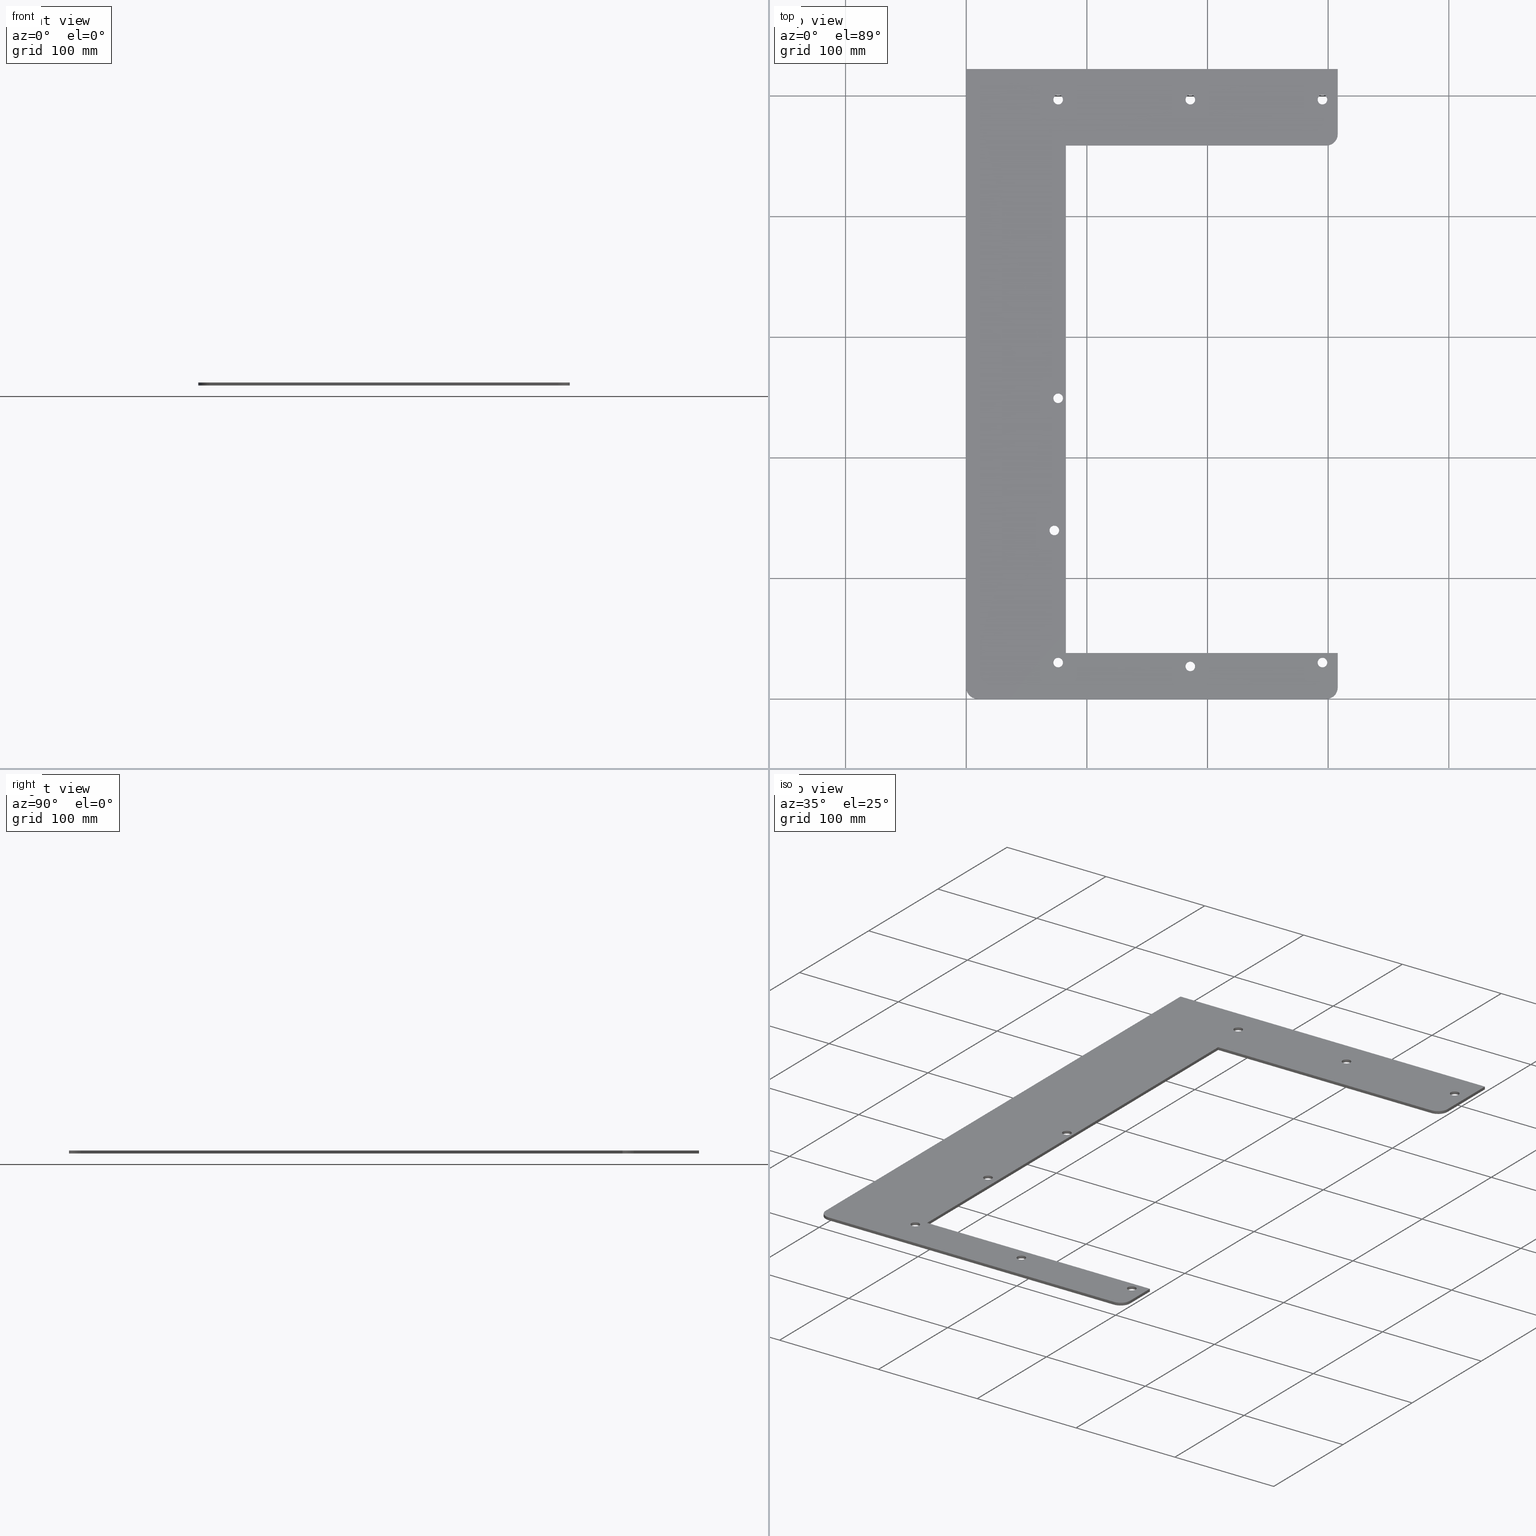
[diagram: canonical four-view strip — front | top / right | iso, engineering-drawing reading convention]
A machine part, canonical four-view strip (front | top / right | iso — engineering-drawing reading convention). The complete STEP part file that produces these views, byte-faithful:
ISO-10303-21;
HEADER;
FILE_DESCRIPTION (( 'STEP AP203' ),
    '1' );
FILE_NAME ('1485EL1.step',
    '2020-11-19T14:41:30',
    ( 'ADC123' ),
    ( 'Microsoft' ),
    'SwSTEP 2.0',
    'SolidWorks 2019',
    '' );
FILE_SCHEMA (( 'CONFIG_CONTROL_DESIGN' ));
ENDSEC;

DATA;
#1 = CARTESIAN_POINT ( 'NONE',  ( 3.250000000000003997, 0.0000000000000000000, 0.1000000000000000056 ) ) ;
#2 = VERTEX_POINT ( 'NONE', #110 ) ;
#3 = CALENDAR_DATE ( 2020, 19, 11 ) ;
#4 = CARTESIAN_POINT ( 'NONE',  ( 12.12500000000000178, 20.56000000000000227, 0.1000000000000000056 ) ) ;
#5 = ORIENTED_EDGE ( 'NONE', *, *, #120, .T. ) ;
#6 = CIRCLE ( 'NONE', #446, 0.1562500000000008327 ) ;
#7 = DIRECTION ( 'NONE',  ( 1.319733330272589941E-16, -1.000000000000000000, 0.0000000000000000000 ) ) ;
#8 = APPROVAL_STATUS ( 'not_yet_approved' ) ;
#9 = DIRECTION ( 'NONE',  ( -0.0000000000000000000, -0.0000000000000000000, -1.000000000000000000 ) ) ;
#10 = ORIENTED_EDGE ( 'NONE', *, *, #142, .F. ) ;
#11 = LINE ( 'NONE', #16, #102 ) ;
#12 = APPROVAL_DATE_TIME ( #71, #708 ) ;
#13 = CYLINDRICAL_SURFACE ( 'NONE', #484, 0.1562500000000008327 ) ;
#14 = ORIENTED_EDGE ( 'NONE', *, *, #614, .T. ) ;
#15 = EDGE_CURVE ( 'NONE', #389, #518, #517, .T. ) ;
#16 = CARTESIAN_POINT ( 'NONE',  ( 12.12500000000000178, 0.0000000000000000000, 0.0000000000000000000 ) ) ;
#17 = DIRECTION ( 'NONE',  ( -0.0000000000000000000, -0.0000000000000000000, 1.000000000000000000 ) ) ;
#18 = ORIENTED_EDGE ( 'NONE', *, *, #625, .F. ) ;
#19 = DIRECTION ( 'NONE',  ( -0.0000000000000000000, -0.0000000000000000000, -1.000000000000000000 ) ) ;
#20 = EDGE_CURVE ( 'NONE', #399, #226, #296, .T. ) ;
#21 = CARTESIAN_POINT ( 'NONE',  ( 7.287686882301918868E-16, 0.3750000000000001110, 0.0000000000000000000 ) ) ;
#22 = CARTESIAN_POINT ( 'NONE',  ( 12.12500000000000178, 20.56000000000000227, 0.0000000000000000000 ) ) ;
#23 = ORIENTED_EDGE ( 'NONE', *, *, #605, .F. ) ;
#24 = CC_DESIGN_PERSON_AND_ORGANIZATION_ASSIGNMENT ( #91, #28, ( #27 ) ) ;
#25 = CARTESIAN_POINT ( 'NONE',  ( 11.75000000000000000, 0.0000000000000000000, 0.0000000000000000000 ) ) ;
#26 = ORIENTED_EDGE ( 'NONE', *, *, #666, .T. ) ;
#27 = SECURITY_CLASSIFICATION ( '', '', #321 ) ;
#28 = PERSON_AND_ORGANIZATION_ROLE ( 'classification_officer' ) ;
#29 = VERTEX_POINT ( 'NONE', #209 ) ;
#30 = EDGE_LOOP ( 'NONE', ( #603 ) ) ;
#31 = CIRCLE ( 'NONE', #671, 0.1562499999999997224 ) ;
#32 = DIRECTION ( 'NONE',  ( 1.000000000000000000, 0.0000000000000000000, 0.0000000000000000000 ) ) ;
#33 = EDGE_CURVE ( 'NONE', #431, #431, #523, .T. ) ;
#34 = VERTEX_POINT ( 'NONE', #724 ) ;
#35 = CARTESIAN_POINT ( 'NONE',  ( 11.75000000000000000, 18.06000000000000227, 0.1000000000000000056 ) ) ;
#36 = CARTESIAN_POINT ( 'NONE',  ( 3.156250000000003997, 19.56000000000000227, 0.0000000000000000000 ) ) ;
#37 = EDGE_CURVE ( 'NONE', #399, #2, #620, .T. ) ;
#38 = DIRECTION ( 'NONE',  ( 0.0000000000000000000, 0.0000000000000000000, 1.000000000000000000 ) ) ;
#39 = VECTOR ( 'NONE', #423, 39.37007874015748143 ) ;
#40 = DIRECTION ( 'NONE',  ( 0.0000000000000000000, -0.0000000000000000000, 1.000000000000000000 ) ) ;
#41 = EDGE_LOOP ( 'NONE', ( #653, #238, #745, #130 ) ) ;
#42 = EDGE_CURVE ( 'NONE', #518, #429, #231, .T. ) ;
#43 = FACE_BOUND ( 'NONE', #572, .T. ) ;
#44 = ORIENTED_EDGE ( 'NONE', *, *, #680, .T. ) ;
#45 = CIRCLE ( 'NONE', #500, 0.1562499999999997224 ) ;
#46 = FACE_BOUND ( 'NONE', #507, .T. ) ;
#47 = DIRECTION ( 'NONE',  ( -0.0000000000000000000, -0.0000000000000000000, -1.000000000000000000 ) ) ;
#48 = ORIENTED_EDGE ( 'NONE', *, *, #223, .F. ) ;
#49 = APPLICATION_PROTOCOL_DEFINITION ( 'international standard', 'config_control_design', 1994, #676 ) ;
#50 = DIRECTION ( 'NONE',  ( -1.223410748777129902E-17, 1.000000000000000000, 0.0000000000000000000 ) ) ;
#51 = CIRCLE ( 'NONE', #341, 0.1562499999999997224 ) ;
#52 = FACE_OUTER_BOUND ( 'NONE', #286, .T. ) ;
#53 = EDGE_LOOP ( 'NONE', ( #354 ) ) ;
#54 = ADVANCED_FACE ( 'NONE', ( #456, #121 ), #690, .F. ) ;
#55 = PERSON_AND_ORGANIZATION_ROLE ( 'design_owner' ) ;
#56 = PLANE ( 'NONE',  #678 ) ;
#57 = EDGE_LOOP ( 'NONE', ( #308 ) ) ;
#58 = VERTEX_POINT ( 'NONE', #453 ) ;
#59 = ADVANCED_FACE ( 'NONE', ( #52, #637 ), #448, .F. ) ;
#60 = APPROVAL_ROLE ( '' ) ;
#61 = CARTESIAN_POINT ( 'NONE',  ( 1.381182328356955297E-16, 20.56000000000000227, 0.1000000000000000056 ) ) ;
#62 = CIRCLE ( 'NONE', #319, 0.1562500000000002776 ) ;
#63 = DIRECTION ( 'NONE',  ( 0.0000000000000000000, 0.0000000000000000000, 1.000000000000000000 ) ) ;
#64 = VERTEX_POINT ( 'NONE', #580 ) ;
#65 = LINE ( 'NONE', #649, #537 ) ;
#66 = DATE_TIME_ROLE ( 'creation_date' ) ;
#67 = VECTOR ( 'NONE', #85, 39.37007874015748143 ) ;
#68 = DIRECTION ( 'NONE',  ( 0.0000000000000000000, 0.0000000000000000000, 1.000000000000000000 ) ) ;
#69 = ORIENTED_EDGE ( 'NONE', *, *, #72, .F. ) ;
#70 = CARTESIAN_POINT ( 'NONE',  ( 2.762364656713910594E-16, 20.56000000000000227, 0.0000000000000000000 ) ) ;
#71 = DATE_AND_TIME ( #406, #108 ) ;
#72 = EDGE_CURVE ( 'NONE', #374, #374, #694, .T. ) ;
#73 = CARTESIAN_POINT ( 'NONE',  ( 12.12500000000000178, 18.06000000000000227, 0.0000000000000000000 ) ) ;
#74 = ORIENTED_EDGE ( 'NONE', *, *, #346, .T. ) ;
#75 = LINE ( 'NONE', #198, #368 ) ;
#76 = CARTESIAN_POINT ( 'NONE',  ( 11.75000000000000000, 0.0000000000000000000, 0.1000000000000000056 ) ) ;
#77 = ORIENTED_EDGE ( 'NONE', *, *, #725, .F. ) ;
#78 = CARTESIAN_POINT ( 'NONE',  ( 3.000000000000007994, 9.812500000000001776, 0.09999999999999947820 ) ) ;
#79 = ORIENTED_EDGE ( 'NONE', *, *, #170, .T. ) ;
#80 = CALENDAR_DATE ( 2020, 19, 11 ) ;
#81 = CYLINDRICAL_SURFACE ( 'NONE', #193, 0.1562500000000002776 ) ;
#82 = CARTESIAN_POINT ( 'NONE',  ( 0.3750000000000007772, 0.0000000000000000000, 0.0000000000000000000 ) ) ;
#83 = ADVANCED_FACE ( 'NONE', ( #291 ), #167, .F. ) ;
#84 = CIRCLE ( 'NONE', #295, 0.1562500000000008327 ) ;
#85 = DIRECTION ( 'NONE',  ( -1.000000000000000000, -0.0000000000000000000, 0.0000000000000000000 ) ) ;
#86 = DIRECTION ( 'NONE',  ( 1.000000000000000000, 0.0000000000000000000, 0.0000000000000000000 ) ) ;
#87 = DIRECTION ( 'NONE',  ( 1.000000000000000000, 0.0000000000000000000, 0.0000000000000000000 ) ) ;
#88 = APPROVAL_PERSON_ORGANIZATION ( #433, #234, #552 ) ;
#89 = ADVANCED_FACE ( 'NONE', ( #463 ), #571, .F. ) ;
#90 = LINE ( 'NONE', #560, #93 ) ;
#91 = PERSON_AND_ORGANIZATION ( #151, #411 ) ;
#92 = CARTESIAN_POINT ( 'NONE',  ( 3.156250000000007994, 1.187500000000000000, 0.0000000000000000000 ) ) ;
#93 = VECTOR ( 'NONE', #40, 39.37007874015748143 ) ;
#94 = CC_DESIGN_PERSON_AND_ORGANIZATION_ASSIGNMENT ( #588, #55, ( #476 ) ) ;
#95 = CARTESIAN_POINT ( 'NONE',  ( 12.12500000000000178, 18.43500000000000227, 0.1000000000000000056 ) ) ;
#96 = CARTESIAN_POINT ( 'NONE',  ( 3.031250000000004441, 5.500000000000000000, 0.09999999999999947820 ) ) ;
#97 = LINE ( 'NONE', #498, #505 ) ;
#98 = ADVANCED_FACE ( 'NONE', ( #538, #652 ), #81, .F. ) ;
#99 = CYLINDRICAL_SURFACE ( 'NONE', #561, 0.3750000000000002220 ) ;
#100 = ORIENTED_EDGE ( 'NONE', *, *, #424, .F. ) ;
#101 = AXIS2_PLACEMENT_3D ( 'NONE', #422, #17, #600 ) ;
#102 = VECTOR ( 'NONE', #370, 39.37007874015748143 ) ;
#103 = CARTESIAN_POINT ( 'NONE',  ( 11.75000000000000000, 18.06000000000000227, 0.1000000000000000056 ) ) ;
#104 = ORIENTED_EDGE ( 'NONE', *, *, #735, .T. ) ;
#105 = DIRECTION ( 'NONE',  ( 0.0000000000000000000, 0.0000000000000000000, 1.000000000000000000 ) ) ;
#106 = DIRECTION ( 'NONE',  ( -1.223410748777129902E-17, 1.000000000000000000, 0.0000000000000000000 ) ) ;
#107 = ORIENTED_EDGE ( 'NONE', *, *, #680, .F. ) ;
#108 = LOCAL_TIME ( 9, 41, 30.00000000000000000, #693 ) ;
#109 = CARTESIAN_POINT ( 'NONE',  ( 0.0000000000000000000, 0.0000000000000000000, 0.1000000000000000056 ) ) ;
#110 = CARTESIAN_POINT ( 'NONE',  ( 0.3750000000000007772, 0.0000000000000000000, 0.1000000000000000056 ) ) ;
#111 = EDGE_LOOP ( 'NONE', ( #420, #336, #119, #163 ) ) ;
#112 = FACE_OUTER_BOUND ( 'NONE', #512, .T. ) ;
#113 = AXIS2_PLACEMENT_3D ( 'NONE', #189, #714, #697 ) ;
#114 = VERTEX_POINT ( 'NONE', #592 ) ;
#115 = ORIENTED_EDGE ( 'NONE', *, *, #666, .F. ) ;
#116 = PERSON_AND_ORGANIZATION_ROLE ( 'creator' ) ;
#117 = DIRECTION ( 'NONE',  ( 0.0000000000000000000, 0.0000000000000000000, 1.000000000000000000 ) ) ;
#118 = CARTESIAN_POINT ( 'NONE',  ( 3.000000000000003997, 19.56000000000000227, -23.76921081644720246 ) ) ;
#119 = ORIENTED_EDGE ( 'NONE', *, *, #387, .F. ) ;
#120 = EDGE_CURVE ( 'NONE', #326, #326, #421, .T. ) ;
#121 = FACE_OUTER_BOUND ( 'NONE', #508, .T. ) ;
#122 = EDGE_LOOP ( 'NONE', ( #201 ) ) ;
#123 = CARTESIAN_POINT ( 'NONE',  ( 3.250000000000003997, 1.500000000000000222, 0.1000000000000000056 ) ) ;
#124 = DIRECTION ( 'NONE',  ( 1.000000000000000000, 0.0000000000000000000, 0.0000000000000000000 ) ) ;
#125 = AXIS2_PLACEMENT_3D ( 'NONE', #610, #727, #213 ) ;
#126 = DIRECTION ( 'NONE',  ( -1.000000000000000000, -0.0000000000000000000, 0.0000000000000000000 ) ) ;
#127 = ORIENTED_EDGE ( 'NONE', *, *, #614, .F. ) ;
#128 = CARTESIAN_POINT ( 'NONE',  ( 12.12500000000000178, 0.3750000000000000555, 0.1000000000000000056 ) ) ;
#129 = DIRECTION ( 'NONE',  ( 1.000000000000000000, 0.0000000000000000000, 0.0000000000000000000 ) ) ;
#130 = ORIENTED_EDGE ( 'NONE', *, *, #20, .T. ) ;
#131 = DIRECTION ( 'NONE',  ( 0.0000000000000000000, -1.000000000000000000, 0.0000000000000000000 ) ) ;
#132 = PERSON_AND_ORGANIZATION_ROLE ( 'creator' ) ;
#133 = CARTESIAN_POINT ( 'NONE',  ( 11.62500000000000000, 1.187500000000000000, -23.76921081644720246 ) ) ;
#134 = DIRECTION ( 'NONE',  ( -0.0000000000000000000, -0.0000000000000000000, -1.000000000000000000 ) ) ;
#135 = DIRECTION ( 'NONE',  ( 1.000000000000000000, 0.0000000000000000000, 0.0000000000000000000 ) ) ;
#136 = ADVANCED_FACE ( 'NONE', ( #362, #713 ), #197, .F. ) ;
#137 = DIRECTION ( 'NONE',  ( -1.000000000000000000, 0.0000000000000000000, 0.0000000000000000000 ) ) ;
#138 = CIRCLE ( 'NONE', #235, 0.1562500000000008327 ) ;
#139 = DIRECTION ( 'NONE',  ( -0.0000000000000000000, 1.000000000000000000, 0.0000000000000000000 ) ) ;
#140 = EDGE_LOOP ( 'NONE', ( #127, #628, #472, #48 ) ) ;
#141 = MANIFOLD_SOLID_BREP ( 'COM49447-1-solid1', #635 ) ;
#142 = EDGE_CURVE ( 'NONE', #335, #624, #417, .T. ) ;
#143 = CARTESIAN_POINT ( 'NONE',  ( 3.756290991288361679E-16, 0.3750000000000000555, 0.1000000000000000056 ) ) ;
#144 = VERTEX_POINT ( 'NONE', #36 ) ;
#145 = LOCAL_TIME ( 9, 41, 30.00000000000000000, #596 ) ;
#146 = DIRECTION ( 'NONE',  ( -1.000000000000000000, 0.0000000000000000000, 0.0000000000000000000 ) ) ;
#147 = DATE_TIME_ROLE ( 'classification_date' ) ;
#148 = DIRECTION ( 'NONE',  ( -1.000000000000000000, 0.0000000000000000000, 0.0000000000000000000 ) ) ;
#149 = AXIS2_PLACEMENT_3D ( 'NONE', #123, #131, #414 ) ;
#150 = VECTOR ( 'NONE', #466, 39.37007874015748143 ) ;
#151 = PERSON ( 'UNSPECIFIED', 'UNSPECIFIED', 'UNSPECIFIED', ('UNSPECIFIED'), ('UNSPECIFIED'), ('UNSPECIFIED') ) ;
#152 = DESIGN_CONTEXT ( 'detailed design', #252, 'design' ) ;
#153 = DIRECTION ( 'NONE',  ( -1.000000000000000000, -0.0000000000000000000, 0.0000000000000000000 ) ) ;
#154 = FACE_OUTER_BOUND ( 'NONE', #533, .T. ) ;
#155 = CC_DESIGN_PERSON_AND_ORGANIZATION_ASSIGNMENT ( #243, #132, ( #749 ) ) ;
#156 = AXIS2_PLACEMENT_3D ( 'NONE', #569, #521, #124 ) ;
#157 = LINE ( 'NONE', #263, #186 ) ;
#158 = ORIENTED_EDGE ( 'NONE', *, *, #545, .T. ) ;
#159 = AXIS2_PLACEMENT_3D ( 'NONE', #366, #709, #311 ) ;
#160 = VECTOR ( 'NONE', #47, 39.37007874015748143 ) ;
#161 = DIRECTION ( 'NONE',  ( 0.0000000000000000000, -1.000000000000000000, -0.0000000000000000000 ) ) ;
#162 = CARTESIAN_POINT ( 'NONE',  ( 7.312500000000000888, 19.56000000000000227, 0.0000000000000000000 ) ) ;
#163 = ORIENTED_EDGE ( 'NONE', *, *, #424, .T. ) ;
#164 =( NAMED_UNIT ( * ) SI_UNIT ( $, .STERADIAN. ) SOLID_ANGLE_UNIT ( ) );
#165 = EDGE_CURVE ( 'NONE', #546, #546, #84, .T. ) ;
#166 = DIRECTION ( 'NONE',  ( 1.000000000000000000, 0.0000000000000000000, 0.0000000000000000000 ) ) ;
#167 = PLANE ( 'NONE',  #654 ) ;
#168 = ORIENTED_EDGE ( 'NONE', *, *, #465, .F. ) ;
#169 = APPROVAL_DATE_TIME ( #684, #287 ) ;
#170 = EDGE_CURVE ( 'NONE', #445, #429, #194, .T. ) ;
#171 = FACE_OUTER_BOUND ( 'NONE', #353, .T. ) ;
#172 = DIRECTION ( 'NONE',  ( 0.0000000000000000000, 0.0000000000000000000, 1.000000000000000000 ) ) ;
#173 = ORIENTED_EDGE ( 'NONE', *, *, #247, .F. ) ;
#174 = CYLINDRICAL_SURFACE ( 'NONE', #357, 0.1562499999999997224 ) ;
#175 = CIRCLE ( 'NONE', #707, 0.3750000000000000555 ) ;
#176 = DIRECTION ( 'NONE',  ( 0.0000000000000000000, 0.0000000000000000000, -1.000000000000000000 ) ) ;
#177 = ORIENTED_EDGE ( 'NONE', *, *, #37, .T. ) ;
#178 = ORIENTED_EDGE ( 'NONE', *, *, #387, .T. ) ;
#179 = VERTEX_POINT ( 'NONE', #76 ) ;
#180 = DIRECTION ( 'NONE',  ( 1.000000000000000000, 0.0000000000000000000, 0.0000000000000000000 ) ) ;
#181 = VERTEX_POINT ( 'NONE', #228 ) ;
#182 = CC_DESIGN_SECURITY_CLASSIFICATION ( #27, ( #749 ) ) ;
#183 = DIRECTION ( 'NONE',  ( 0.0000000000000000000, 0.0000000000000000000, 1.000000000000000000 ) ) ;
#184 = ORIENTED_EDGE ( 'NONE', *, *, #20, .F. ) ;
#185 = DIRECTION ( 'NONE',  ( 1.000000000000000000, 0.0000000000000000000, 0.0000000000000000000 ) ) ;
#186 = VECTOR ( 'NONE', #153, 39.37007874015748143 ) ;
#187 = DIRECTION ( 'NONE',  ( -0.0000000000000000000, -1.000000000000000000, 0.0000000000000000000 ) ) ;
#188 = ORIENTED_EDGE ( 'NONE', *, *, #478, .F. ) ;
#189 = CARTESIAN_POINT ( 'NONE',  ( 11.62500000000000000, 1.187500000000000000, 0.0000000000000000000 ) ) ;
#190 = ORIENTED_EDGE ( 'NONE', *, *, #515, .F. ) ;
#191 = PERSON_AND_ORGANIZATION_ROLE ( 'design_supplier' ) ;
#192 = EDGE_CURVE ( 'NONE', #179, #665, #522, .T. ) ;
#193 = AXIS2_PLACEMENT_3D ( 'NONE', #589, #647, #135 ) ;
#194 = LINE ( 'NONE', #73, #719 ) ;
#195 = LINE ( 'NONE', #409, #559 ) ;
#196 = CIRCLE ( 'NONE', #288, 0.1562499999999997224 ) ;
#197 = CYLINDRICAL_SURFACE ( 'NONE', #330, 0.1562500000000008327 ) ;
#198 = CARTESIAN_POINT ( 'NONE',  ( 3.250000000000003997, 18.06000000000000227, 0.0000000000000000000 ) ) ;
#199 = VECTOR ( 'NONE', #539, 39.37007874015748143 ) ;
#200 = CARTESIAN_POINT ( 'NONE',  ( 11.75000000000000000, 18.43500000000000227, 0.1000000000000000056 ) ) ;
#201 = ORIENTED_EDGE ( 'NONE', *, *, #165, .T. ) ;
#202 = AXIS2_PLACEMENT_3D ( 'NONE', #407, #9, #339 ) ;
#203 = DIRECTION ( 'NONE',  ( -0.0000000000000000000, -0.0000000000000000000, -1.000000000000000000 ) ) ;
#204 = CC_DESIGN_DATE_AND_TIME_ASSIGNMENT ( #365, #147, ( #27 ) ) ;
#205 = PLANE ( 'NONE',  #729 ) ;
#206 = SHAPE_DEFINITION_REPRESENTATION ( #643, #616 ) ;
#207 = VERTEX_POINT ( 'NONE', #434 ) ;
#208 = DIRECTION ( 'NONE',  ( 0.0000000000000000000, 0.0000000000000000000, -1.000000000000000000 ) ) ;
#209 = CARTESIAN_POINT ( 'NONE',  ( 7.468750000000000888, 1.062500000000000000, 0.0000000000000000000 ) ) ;
#210 = AXIS2_PLACEMENT_3D ( 'NONE', #338, #390, #166 ) ;
#211 = ADVANCED_FACE ( 'NONE', ( #703, #412 ), #597, .F. ) ;
#212 = DIRECTION ( 'NONE',  ( 1.000000000000000000, 0.0000000000000000000, -0.0000000000000000000 ) ) ;
#213 = DIRECTION ( 'NONE',  ( 1.319733330272589941E-16, -1.000000000000000000, 0.0000000000000000000 ) ) ;
#214 = ORIENTED_EDGE ( 'NONE', *, *, #255, .T. ) ;
#215 = APPROVAL_PERSON_ORGANIZATION ( #294, #708, #458 ) ;
#216 = DIRECTION ( 'NONE',  ( -0.0000000000000000000, -0.0000000000000000000, 1.000000000000000000 ) ) ;
#217 = ORIENTED_EDGE ( 'NONE', *, *, #639, .F. ) ;
#218 = EDGE_CURVE ( 'NONE', #619, #732, #304, .T. ) ;
#219 = CIRCLE ( 'NONE', #650, 0.1562500000000002776 ) ;
#220 = DIRECTION ( 'NONE',  ( 1.000000000000000000, 0.0000000000000000000, -0.0000000000000000000 ) ) ;
#221 = CARTESIAN_POINT ( 'NONE',  ( 3.250000000000003997, 18.06000000000000227, 0.1000000000000000056 ) ) ;
#222 = ORIENTED_EDGE ( 'NONE', *, *, #42, .F. ) ;
#223 = EDGE_CURVE ( 'NONE', #695, #547, #244, .T. ) ;
#224 = PERSON_AND_ORGANIZATION ( #151, #411 ) ;
#225 = CARTESIAN_POINT ( 'NONE',  ( 12.12500000000000178, 18.06000000000000227, 0.1000000000000000056 ) ) ;
#226 = VERTEX_POINT ( 'NONE', #21 ) ;
#227 = ORIENTED_EDGE ( 'NONE', *, *, #306, .T. ) ;
#228 = CARTESIAN_POINT ( 'NONE',  ( 11.78125000000000178, 19.56000000000000227, 0.09999999999999947820 ) ) ;
#229 = ADVANCED_FACE ( 'NONE', ( #658, #469 ), #13, .F. ) ;
#230 = DIRECTION ( 'NONE',  ( -1.000000000000000000, 0.0000000000000000000, 0.0000000000000000000 ) ) ;
#231 = LINE ( 'NONE', #221, #160 ) ;
#232 = ORIENTED_EDGE ( 'NONE', *, *, #379, .F. ) ;
#233 = DATE_AND_TIME ( #3, #265 ) ;
#234 = APPROVAL ( #309, 'UNSPECIFIED' ) ;
#235 = AXIS2_PLACEMENT_3D ( 'NONE', #655, #19, #180 ) ;
#236 = ORIENTED_EDGE ( 'NONE', *, *, #536, .T. ) ;
#237 = VECTOR ( 'NONE', #344, 39.37007874015748143 ) ;
#238 = ORIENTED_EDGE ( 'NONE', *, *, #440, .T. ) ;
#239 = CYLINDRICAL_SURFACE ( 'NONE', #437, 0.3750000000000000555 ) ;
#240 = DIRECTION ( 'NONE',  ( 0.0000000000000000000, -1.000000000000000000, 0.0000000000000000000 ) ) ;
#241 = ORIENTED_EDGE ( 'NONE', *, *, #223, .T. ) ;
#242 = LINE ( 'NONE', #461, #39 ) ;
#243 = PERSON_AND_ORGANIZATION ( #151, #411 ) ;
#244 = LINE ( 'NONE', #253, #67 ) ;
#245 = ORIENTED_EDGE ( 'NONE', *, *, #346, .F. ) ;
#246 = CARTESIAN_POINT ( 'NONE',  ( 12.12500000000000178, 18.43500000000000227, 0.0000000000000000000 ) ) ;
#247 = EDGE_CURVE ( 'NONE', #318, #399, #699, .T. ) ;
#248 = CARTESIAN_POINT ( 'NONE',  ( 11.62500000000000000, 19.56000000000000227, 0.0000000000000000000 ) ) ;
#249 = EDGE_LOOP ( 'NONE', ( #217, #567, #544, #502 ) ) ;
#250 = DIRECTION ( 'NONE',  ( 0.0000000000000000000, 1.000000000000000000, 0.0000000000000000000 ) ) ;
#251 = ORIENTED_EDGE ( 'NONE', *, *, #577, .F. ) ;
#252 = APPLICATION_CONTEXT ( 'configuration controlled 3d designs of mechanical parts and assemblies' ) ;
#253 = CARTESIAN_POINT ( 'NONE',  ( 6.658879484556653798E-16, 0.0000000000000000000, 0.0000000000000000000 ) ) ;
#254 = DIRECTION ( 'NONE',  ( 0.0000000000000000000, 0.0000000000000000000, 1.000000000000000000 ) ) ;
#255 = EDGE_CURVE ( 'NONE', #29, #29, #609, .T. ) ;
#256 = DIRECTION ( 'NONE',  ( -0.0000000000000000000, 0.0000000000000000000, 1.000000000000000000 ) ) ;
#257 = ADVANCED_FACE ( 'NONE', ( #570, #501 ), #280, .F. ) ;
#258 = AXIS2_PLACEMENT_3D ( 'NONE', #284, #117, #343 ) ;
#259 = CARTESIAN_POINT ( 'NONE',  ( 3.000000000000007994, 1.187500000000000000, 0.09999999999999947820 ) ) ;
#260 = ORIENTED_EDGE ( 'NONE', *, *, #170, .F. ) ;
#261 = CARTESIAN_POINT ( 'NONE',  ( 12.12500000000000178, 18.43500000000000227, 0.1000000000000000056 ) ) ;
#262 = DIRECTION ( 'NONE',  ( 0.0000000000000000000, 0.0000000000000000000, 1.000000000000000000 ) ) ;
#263 = CARTESIAN_POINT ( 'NONE',  ( 6.658879484556653798E-16, 20.56000000000000227, 0.1000000000000000056 ) ) ;
#264 = LINE ( 'NONE', #486, #375 ) ;
#265 = LOCAL_TIME ( 9, 41, 30.00000000000000000, #351 ) ;
#266 = EDGE_CURVE ( 'NONE', #226, #662, #574, .T. ) ;
#267 = FACE_BOUND ( 'NONE', #460, .T. ) ;
#268 = VECTOR ( 'NONE', #492, 39.37007874015748143 ) ;
#269 = CARTESIAN_POINT ( 'NONE',  ( 11.75000000000000000, 18.06000000000000227, 0.0000000000000000000 ) ) ;
#270 = DIMENSIONAL_EXPONENTS ( 1.000000000000000000, 0.0000000000000000000, 0.0000000000000000000, 0.0000000000000000000, 0.0000000000000000000, 0.0000000000000000000, 0.0000000000000000000 ) ;
#271 = ORIENTED_EDGE ( 'NONE', *, *, #478, .T. ) ;
#272 = DIRECTION ( 'NONE',  ( -1.000000000000000000, 0.0000000000000000000, 0.0000000000000000000 ) ) ;
#273 = ADVANCED_FACE ( 'NONE', ( #506 ), #56, .F. ) ;
#274 = ORIENTED_EDGE ( 'NONE', *, *, #416, .T. ) ;
#275 = FACE_BOUND ( 'NONE', #675, .T. ) ;
#276 = DIRECTION ( 'NONE',  ( 1.000000000000000000, 0.0000000000000000000, 0.0000000000000000000 ) ) ;
#277 = EDGE_LOOP ( 'NONE', ( #115 ) ) ;
#278 = MECHANICAL_CONTEXT ( 'NONE', #676, 'mechanical' ) ;
#279 = CIRCLE ( 'NONE', #382, 0.3750000000000002220 ) ;
#280 = CYLINDRICAL_SURFACE ( 'NONE', #258, 0.1562500000000002776 ) ;
#281 = ORIENTED_EDGE ( 'NONE', *, *, #504, .F. ) ;
#282 = EDGE_LOOP ( 'NONE', ( #104 ) ) ;
#283 = VERTEX_POINT ( 'NONE', #698 ) ;
#284 = CARTESIAN_POINT ( 'NONE',  ( 3.000000000000007994, 9.812500000000001776, -23.76921081644720246 ) ) ;
#285 = EDGE_LOOP ( 'NONE', ( #449 ) ) ;
#286 = EDGE_LOOP ( 'NONE', ( #281 ) ) ;
#287 = APPROVAL ( #450, 'UNSPECIFIED' ) ;
#288 = AXIS2_PLACEMENT_3D ( 'NONE', #299, #602, #315 ) ;
#289 = CC_DESIGN_APPROVAL ( #287, ( #333 ) ) ;
#290 = DIRECTION ( 'NONE',  ( 1.000000000000000000, 0.0000000000000000000, 0.0000000000000000000 ) ) ;
#291 = FACE_OUTER_BOUND ( 'NONE', #706, .T. ) ;
#292 = ORIENTED_EDGE ( 'NONE', *, *, #379, .T. ) ;
#293 = CARTESIAN_POINT ( 'NONE',  ( 12.12500000000000178, 1.500000000000000222, 0.1000000000000000056 ) ) ;
#294 = PERSON_AND_ORGANIZATION ( #151, #411 ) ;
#295 = AXIS2_PLACEMENT_3D ( 'NONE', #248, #425, #479 ) ;
#296 = LINE ( 'NONE', #682, #430 ) ;
#297 = AXIS2_PLACEMENT_3D ( 'NONE', #575, #524, #566 ) ;
#298 = EDGE_LOOP ( 'NONE', ( #525 ) ) ;
#299 = CARTESIAN_POINT ( 'NONE',  ( 7.312500000000000888, 1.062500000000000000, 0.09999999999999947820 ) ) ;
#300 = ADVANCED_FACE ( 'NONE', ( #112 ), #743, .F. ) ;
#301 = CARTESIAN_POINT ( 'NONE',  ( 3.250000000000003997, 1.500000000000000222, 0.0000000000000000000 ) ) ;
#302 = EDGE_LOOP ( 'NONE', ( #371, #79, #405, #718, #236, #188, #241, #349, #470, #535, #345 ) ) ;
#303 = DIRECTION ( 'NONE',  ( -0.0000000000000000000, -0.0000000000000000000, -1.000000000000000000 ) ) ;
#304 = LINE ( 'NONE', #301, #692 ) ;
#305 = ORIENTED_EDGE ( 'NONE', *, *, #577, .T. ) ;
#306 = EDGE_CURVE ( 'NONE', #2, #179, #737, .T. ) ;
#307 = CARTESIAN_POINT ( 'NONE',  ( 3.250000000000004441, 1.500000000000000444, 0.0000000000000000000 ) ) ;
#308 = ORIENTED_EDGE ( 'NONE', *, *, #350, .T. ) ;
#309 = APPROVAL_STATUS ( 'not_yet_approved' ) ;
#310 = VECTOR ( 'NONE', #220, 39.37007874015748143 ) ;
#311 = DIRECTION ( 'NONE',  ( 1.000000000000000000, 0.0000000000000000000, 0.0000000000000000000 ) ) ;
#312 = DIRECTION ( 'NONE',  ( 0.0000000000000000000, -0.0000000000000000000, 1.000000000000000000 ) ) ;
#313 = EDGE_CURVE ( 'NONE', #445, #624, #322, .T. ) ;
#314 = CARTESIAN_POINT ( 'NONE',  ( 3.000000000000007994, 1.187500000000000000, 0.0000000000000000000 ) ) ;
#315 = DIRECTION ( 'NONE',  ( 1.000000000000000000, 0.0000000000000000000, 0.0000000000000000000 ) ) ;
#316 = ORIENTED_EDGE ( 'NONE', *, *, #747, .F. ) ;
#317 = DIRECTION ( 'NONE',  ( -0.0000000000000000000, -0.0000000000000000000, -1.000000000000000000 ) ) ;
#318 = VERTEX_POINT ( 'NONE', #61 ) ;
#319 = AXIS2_PLACEMENT_3D ( 'NONE', #428, #721, #86 ) ;
#320 = FACE_OUTER_BOUND ( 'NONE', #687, .T. ) ;
#321 = SECURITY_CLASSIFICATION_LEVEL ( 'unclassified' ) ;
#322 = CIRCLE ( 'NONE', #495, 0.3750000000000002220 ) ;
#323 = CARTESIAN_POINT ( 'NONE',  ( 11.78125000000000178, 1.187500000000000000, 0.09999999999999947820 ) ) ;
#324 = FACE_BOUND ( 'NONE', #679, .T. ) ;
#325 = ADVANCED_FACE ( 'NONE', ( #171, #447 ), #174, .F. ) ;
#326 = VERTEX_POINT ( 'NONE', #92 ) ;
#327 = DIRECTION ( 'NONE',  ( 1.000000000000000000, 0.0000000000000000000, -0.0000000000000000000 ) ) ;
#328 = CARTESIAN_POINT ( 'NONE',  ( 11.75000000000000000, 0.3750000000000000555, 0.1000000000000000056 ) ) ;
#329 = ORIENTED_EDGE ( 'NONE', *, *, #42, .T. ) ;
#330 = AXIS2_PLACEMENT_3D ( 'NONE', #527, #358, #532 ) ;
#331 = DIRECTION ( 'NONE',  ( 1.000000000000000000, 0.0000000000000000000, -0.0000000000000000000 ) ) ;
#332 = EDGE_LOOP ( 'NONE', ( #487, #18, #190, #585 ) ) ;
#333 = PRODUCT_DEFINITION ( 'UNKNOWN', '', #749, #152 ) ;
#334 = CARTESIAN_POINT ( 'NONE',  ( 12.12500000000000178, 20.56000000000000227, 0.0000000000000000000 ) ) ;
#335 = VERTEX_POINT ( 'NONE', #334 ) ;
#336 = ORIENTED_EDGE ( 'NONE', *, *, #465, .T. ) ;
#337 = CARTESIAN_POINT ( 'NONE',  ( 3.156250000000007994, 9.812500000000001776, 0.09999999999999947820 ) ) ;
#338 = CARTESIAN_POINT ( 'NONE',  ( 7.312500000000000888, 1.062500000000000000, 0.0000000000000000000 ) ) ;
#339 = DIRECTION ( 'NONE',  ( 1.000000000000000000, 0.0000000000000000000, 0.0000000000000000000 ) ) ;
#340 = ORIENTED_EDGE ( 'NONE', *, *, #165, .F. ) ;
#341 = AXIS2_PLACEMENT_3D ( 'NONE', #360, #303, #367 ) ;
#342 = AXIS2_PLACEMENT_3D ( 'NONE', #78, #134, #661 ) ;
#343 = DIRECTION ( 'NONE',  ( 1.000000000000000000, 0.0000000000000000000, 0.0000000000000000000 ) ) ;
#344 = DIRECTION ( 'NONE',  ( -0.0000000000000000000, 1.000000000000000000, 0.0000000000000000000 ) ) ;
#345 = ORIENTED_EDGE ( 'NONE', *, *, #142, .T. ) ;
#346 = EDGE_CURVE ( 'NONE', #144, #144, #31, .T. ) ;
#347 = DIRECTION ( 'NONE',  ( 0.0000000000000000000, -0.0000000000000000000, 1.000000000000000000 ) ) ;
#348 = EDGE_LOOP ( 'NONE', ( #648 ) ) ;
#349 = ORIENTED_EDGE ( 'NONE', *, *, #491, .F. ) ;
#350 = EDGE_CURVE ( 'NONE', #378, #378, #6, .T. ) ;
#351 = COORDINATED_UNIVERSAL_TIME_OFFSET ( 5, 0, .BEHIND. ) ;
#352 =( GEOMETRIC_REPRESENTATION_CONTEXT ( 3 ) GLOBAL_UNCERTAINTY_ASSIGNED_CONTEXT ( ( #554 ) ) GLOBAL_UNIT_ASSIGNED_CONTEXT ( ( #400, #746, #164 ) ) REPRESENTATION_CONTEXT ( 'NONE', 'WORKASPACE' ) );
#353 = EDGE_LOOP ( 'NONE', ( #739 ) ) ;
#354 = ORIENTED_EDGE ( 'NONE', *, *, #621, .T. ) ;
#355 = CARTESIAN_POINT ( 'NONE',  ( 3.250000000000006217, 1.500000000000000888, 0.1000000000000000056 ) ) ;
#356 = ADVANCED_FACE ( 'NONE', ( #565, #46, #681, #275, #393, #615, #617, #494, #43 ), #672, .F. ) ;
#357 = AXIS2_PLACEMENT_3D ( 'NONE', #455, #105, #677 ) ;
#358 = DIRECTION ( 'NONE',  ( 0.0000000000000000000, 0.0000000000000000000, 1.000000000000000000 ) ) ;
#359 = ORIENTED_EDGE ( 'NONE', *, *, #657, .F. ) ;
#360 = CARTESIAN_POINT ( 'NONE',  ( 3.000000000000003997, 19.56000000000000227, 0.09999999999999947820 ) ) ;
#361 = ADVANCED_FACE ( 'NONE', ( #320 ), #674, .F. ) ;
#362 = FACE_OUTER_BOUND ( 'NONE', #30, .T. ) ;
#363 = EDGE_LOOP ( 'NONE', ( #26 ) ) ;
#364 = LINE ( 'NONE', #355, #548 ) ;
#365 = DATE_AND_TIME ( #80, #145 ) ;
#366 = CARTESIAN_POINT ( 'NONE',  ( 7.312500000000000888, 1.062500000000000000, -23.76921081644720246 ) ) ;
#367 = DIRECTION ( 'NONE',  ( 1.000000000000000000, 0.0000000000000000000, 0.0000000000000000000 ) ) ;
#368 = VECTOR ( 'NONE', #7, 39.37007874015748143 ) ;
#369 = CARTESIAN_POINT ( 'NONE',  ( 12.12500000000000178, 18.06000000000000227, 0.0000000000000000000 ) ) ;
#370 = DIRECTION ( 'NONE',  ( -0.0000000000000000000, -1.000000000000000000, 0.0000000000000000000 ) ) ;
#371 = ORIENTED_EDGE ( 'NONE', *, *, #313, .F. ) ;
#372 = CC_DESIGN_PERSON_AND_ORGANIZATION_ASSIGNMENT ( #530, #191, ( #749 ) ) ;
#373 = AXIS2_PLACEMENT_3D ( 'NONE', #118, #172, #398 ) ;
#374 = VERTEX_POINT ( 'NONE', #553 ) ;
#375 = VECTOR ( 'NONE', #256, 39.37007874015748143 ) ;
#376 = DIRECTION ( 'NONE',  ( 0.0000000000000000000, 0.0000000000000000000, 1.000000000000000000 ) ) ;
#377 = CALENDAR_DATE ( 2020, 19, 11 ) ;
#378 = VERTEX_POINT ( 'NONE', #323 ) ;
#379 = EDGE_CURVE ( 'NONE', #114, #318, #157, .T. ) ;
#380 = FACE_BOUND ( 'NONE', #562, .T. ) ;
#381 = COORDINATED_UNIVERSAL_TIME_OFFSET ( 5, 0, .BEHIND. ) ;
#382 = AXIS2_PLACEMENT_3D ( 'NONE', #733, #731, #272 ) ;
#383 = FACE_OUTER_BOUND ( 'NONE', #111, .T. ) ;
#384 = FACE_OUTER_BOUND ( 'NONE', #642, .T. ) ;
#385 = VECTOR ( 'NONE', #187, 39.37007874015748143 ) ;
#386 = FACE_BOUND ( 'NONE', #285, .T. ) ;
#387 = EDGE_CURVE ( 'NONE', #454, #408, #549, .T. ) ;
#388 = DIRECTION ( 'NONE',  ( 0.0000000000000000000, 0.0000000000000000000, 1.000000000000000000 ) ) ;
#389 = VERTEX_POINT ( 'NONE', #551 ) ;
#390 = DIRECTION ( 'NONE',  ( 0.0000000000000000000, 0.0000000000000000000, 1.000000000000000000 ) ) ;
#391 = CARTESIAN_POINT ( 'NONE',  ( 4.143546985070866137E-16, 20.56000000000000227, 0.1000000000000000056 ) ) ;
#392 = ORIENTED_EDGE ( 'NONE', *, *, #416, .F. ) ;
#393 = FACE_BOUND ( 'NONE', #122, .T. ) ;
#394 = ORIENTED_EDGE ( 'NONE', *, *, #689, .T. ) ;
#395 = ORIENTED_EDGE ( 'NONE', *, *, #558, .T. ) ;
#396 = PERSON_AND_ORGANIZATION ( #151, #411 ) ;
#397 = CARTESIAN_POINT ( 'NONE',  ( 3.000000000000003997, 19.56000000000000227, 0.0000000000000000000 ) ) ;
#398 = DIRECTION ( 'NONE',  ( 1.000000000000000000, 0.0000000000000000000, 0.0000000000000000000 ) ) ;
#399 = VERTEX_POINT ( 'NONE', #143 ) ;
#400 =( CONVERSION_BASED_UNIT ( 'INCH', #514 ) LENGTH_UNIT ( ) NAMED_UNIT ( #270 ) );
#401 = VECTOR ( 'NONE', #312, 39.37007874015748143 ) ;
#402 = DIRECTION ( 'NONE',  ( -0.0000000000000000000, -0.0000000000000000000, -1.000000000000000000 ) ) ;
#403 = ADVANCED_FACE ( 'NONE', ( #384, #324, #386, #723, #668, #267, #380, #444, #730 ), #673, .T. ) ;
#404 = CARTESIAN_POINT ( 'NONE',  ( 2.875000000000003997, 5.500000000000000000, -23.76921081644720246 ) ) ;
#405 = ORIENTED_EDGE ( 'NONE', *, *, #605, .T. ) ;
#406 = CALENDAR_DATE ( 2020, 19, 11 ) ;
#407 = CARTESIAN_POINT ( 'NONE',  ( 2.875000000000003997, 5.500000000000000000, 0.09999999999999947820 ) ) ;
#408 = VERTEX_POINT ( 'NONE', #95 ) ;
#409 = CARTESIAN_POINT ( 'NONE',  ( 12.12500000000000178, 0.3750000000000000555, 0.1000000000000000056 ) ) ;
#410 = CARTESIAN_POINT ( 'NONE',  ( 3.156250000000007994, 9.812500000000001776, 0.0000000000000000000 ) ) ;
#411 = ORGANIZATION ( 'UNSPECIFIED', 'UNSPECIFIED', '' ) ;
#412 = FACE_OUTER_BOUND ( 'NONE', #298, .T. ) ;
#413 = ORIENTED_EDGE ( 'NONE', *, *, #33, .T. ) ;
#414 = DIRECTION ( 'NONE',  ( 0.0000000000000000000, -0.0000000000000000000, -1.000000000000000000 ) ) ;
#415 = CIRCLE ( 'NONE', #342, 0.1562500000000002776 ) ;
#416 = EDGE_CURVE ( 'NONE', #34, #34, #219, .T. ) ;
#417 = LINE ( 'NONE', #369, #385 ) ;
#418 = ORIENTED_EDGE ( 'NONE', *, *, #15, .F. ) ;
#419 = DIRECTION ( 'NONE',  ( -0.0000000000000000000, 1.000000000000000000, 0.0000000000000000000 ) ) ;
#420 = ORIENTED_EDGE ( 'NONE', *, *, #313, .T. ) ;
#421 = CIRCLE ( 'NONE', #612, 0.1562500000000002776 ) ;
#422 = CARTESIAN_POINT ( 'NONE',  ( 11.75000000000000000, 0.3750000000000000555, 0.1000000000000000056 ) ) ;
#423 = DIRECTION ( 'NONE',  ( 0.0000000000000000000, 0.0000000000000000000, -1.000000000000000000 ) ) ;
#424 = EDGE_CURVE ( 'NONE', #454, #445, #439, .T. ) ;
#425 = DIRECTION ( 'NONE',  ( 0.0000000000000000000, 0.0000000000000000000, 1.000000000000000000 ) ) ;
#426 = FACE_OUTER_BOUND ( 'NONE', #332, .T. ) ;
#427 = AXIS2_PLACEMENT_3D ( 'NONE', #613, #376, #212 ) ;
#428 = CARTESIAN_POINT ( 'NONE',  ( 3.000000000000007994, 9.812500000000001776, 0.0000000000000000000 ) ) ;
#429 = VERTEX_POINT ( 'NONE', #555 ) ;
#430 = VECTOR ( 'NONE', #176, 39.37007874015748143 ) ;
#431 = VERTEX_POINT ( 'NONE', #96 ) ;
#432 = CARTESIAN_POINT ( 'NONE',  ( 12.12500000000000178, 18.06000000000000227, 0.1000000000000000056 ) ) ;
#433 = PERSON_AND_ORGANIZATION ( #151, #411 ) ;
#434 = CARTESIAN_POINT ( 'NONE',  ( 3.156250000000003997, 19.56000000000000227, 0.09999999999999947820 ) ) ;
#435 = ADVANCED_FACE ( 'NONE', ( #154 ), #99, .T. ) ;
#436 = CARTESIAN_POINT ( 'NONE',  ( 11.75000000000000000, 18.43500000000000227, 0.1000000000000000056 ) ) ;
#437 = AXIS2_PLACEMENT_3D ( 'NONE', #705, #711, #137 ) ;
#438 = CARTESIAN_POINT ( 'NONE',  ( 11.78125000000000178, 1.187500000000000000, 0.0000000000000000000 ) ) ;
#439 = LINE ( 'NONE', #103, #268 ) ;
#440 = EDGE_CURVE ( 'NONE', #547, #2, #90, .T. ) ;
#441 = CARTESIAN_POINT ( 'NONE',  ( 6.658879484556653798E-16, 0.0000000000000000000, 0.0000000000000000000 ) ) ;
#442 = PRODUCT_RELATED_PRODUCT_CATEGORY ( 'detail', '', ( #476 ) ) ;
#443 = EDGE_LOOP ( 'NONE', ( #513 ) ) ;
#444 = FACE_BOUND ( 'NONE', #363, .T. ) ;
#445 = VERTEX_POINT ( 'NONE', #269 ) ;
#446 = AXIS2_PLACEMENT_3D ( 'NONE', #688, #402, #516 ) ;
#447 = FACE_OUTER_BOUND ( 'NONE', #641, .T. ) ;
#448 = CYLINDRICAL_SURFACE ( 'NONE', #373, 0.1562499999999997224 ) ;
#449 = ORIENTED_EDGE ( 'NONE', *, *, #725, .T. ) ;
#450 = APPROVAL_STATUS ( 'not_yet_approved' ) ;
#451 = EDGE_CURVE ( 'NONE', #518, #454, #97, .T. ) ;
#452 = DIRECTION ( 'NONE',  ( -1.000000000000000000, 0.0000000000000000000, 0.0000000000000000000 ) ) ;
#453 = CARTESIAN_POINT ( 'NONE',  ( 12.12500000000000178, 0.3750000000000000555, 0.0000000000000000000 ) ) ;
#454 = VERTEX_POINT ( 'NONE', #35 ) ;
#455 = CARTESIAN_POINT ( 'NONE',  ( 7.312500000000000888, 19.56000000000000227, -23.76921081644720246 ) ) ;
#456 = FACE_OUTER_BOUND ( 'NONE', #599, .T. ) ;
#457 = EDGE_LOOP ( 'NONE', ( #740 ) ) ;
#458 = APPROVAL_ROLE ( '' ) ;
#459 = EDGE_LOOP ( 'NONE', ( #5 ) ) ;
#460 = EDGE_LOOP ( 'NONE', ( #394 ) ) ;
#461 = CARTESIAN_POINT ( 'NONE',  ( 11.75000000000000000, 0.0000000000000000000, 0.1000000000000000056 ) ) ;
#462 = VERTEX_POINT ( 'NONE', #640 ) ;
#463 = FACE_OUTER_BOUND ( 'NONE', #704, .T. ) ;
#464 = ORIENTED_EDGE ( 'NONE', *, *, #451, .T. ) ;
#465 = EDGE_CURVE ( 'NONE', #624, #408, #557, .T. ) ;
#466 = DIRECTION ( 'NONE',  ( -0.0000000000000000000, 0.0000000000000000000, 1.000000000000000000 ) ) ;
#467 = VERTEX_POINT ( 'NONE', #337 ) ;
#468 = APPROVAL_PERSON_ORGANIZATION ( #224, #287, #60 ) ;
#469 = FACE_OUTER_BOUND ( 'NONE', #503, .T. ) ;
#470 = ORIENTED_EDGE ( 'NONE', *, *, #266, .T. ) ;
#471 = CARTESIAN_POINT ( 'NONE',  ( 6.658879484556653798E-16, 1.500000000000000222, 0.1000000000000000056 ) ) ;
#472 = ORIENTED_EDGE ( 'NONE', *, *, #440, .F. ) ;
#473 = VECTOR ( 'NONE', #496, 39.37007874015748143 ) ;
#474 = DIRECTION ( 'NONE',  ( 1.000000000000000000, 0.0000000000000000000, 0.0000000000000000000 ) ) ;
#475 = ORIENTED_EDGE ( 'NONE', *, *, #639, .T. ) ;
#476 = PRODUCT ( '1485EL1', '1485EL1', '', ( #278 ) ) ;
#477 = DIRECTION ( 'NONE',  ( -1.000000000000000000, 0.0000000000000000000, 0.0000000000000000000 ) ) ;
#478 = EDGE_CURVE ( 'NONE', #695, #58, #279, .T. ) ;
#479 = DIRECTION ( 'NONE',  ( 1.000000000000000000, 0.0000000000000000000, 0.0000000000000000000 ) ) ;
#480 = CARTESIAN_POINT ( 'NONE',  ( 4.143546985070866137E-16, 20.56000000000000227, 0.1000000000000000056 ) ) ;
#481 = VECTOR ( 'NONE', #139, 39.37007874015748143 ) ;
#482 = DIRECTION ( 'NONE',  ( 1.000000000000000000, 0.0000000000000000000, 0.0000000000000000000 ) ) ;
#483 = ORIENTED_EDGE ( 'NONE', *, *, #625, .T. ) ;
#484 = AXIS2_PLACEMENT_3D ( 'NONE', #133, #542, #129 ) ;
#485 = ADVANCED_FACE ( 'NONE', ( #489 ), #205, .F. ) ;
#486 = CARTESIAN_POINT ( 'NONE',  ( 12.12500000000000178, 20.56000000000000227, 0.1000000000000000056 ) ) ;
#487 = ORIENTED_EDGE ( 'NONE', *, *, #657, .T. ) ;
#488 = VECTOR ( 'NONE', #185, 39.37007874015748143 ) ;
#489 = FACE_OUTER_BOUND ( 'NONE', #627, .T. ) ;
#490 = CARTESIAN_POINT ( 'NONE',  ( 12.12500000000000178, 0.0000000000000000000, 0.1000000000000000056 ) ) ;
#491 = EDGE_CURVE ( 'NONE', #226, #547, #175, .T. ) ;
#492 = DIRECTION ( 'NONE',  ( 0.0000000000000000000, 0.0000000000000000000, -1.000000000000000000 ) ) ;
#493 = DIRECTION ( 'NONE',  ( 0.0000000000000000000, 0.0000000000000000000, -1.000000000000000000 ) ) ;
#494 = FACE_BOUND ( 'NONE', #282, .T. ) ;
#495 = AXIS2_PLACEMENT_3D ( 'NONE', #622, #626, #230 ) ;
#496 = DIRECTION ( 'NONE',  ( 0.0000000000000000000, 0.0000000000000000000, 1.000000000000000000 ) ) ;
#497 = EDGE_LOOP ( 'NONE', ( #77 ) ) ;
#498 = CARTESIAN_POINT ( 'NONE',  ( 6.658879484556653798E-16, 18.06000000000000227, 0.1000000000000000056 ) ) ;
#499 = EDGE_LOOP ( 'NONE', ( #74 ) ) ;
#500 = AXIS2_PLACEMENT_3D ( 'NONE', #728, #203, #482 ) ;
#501 = FACE_OUTER_BOUND ( 'NONE', #595, .T. ) ;
#502 = ORIENTED_EDGE ( 'NONE', *, *, #558, .F. ) ;
#503 = EDGE_LOOP ( 'NONE', ( #744 ) ) ;
#504 = EDGE_CURVE ( 'NONE', #207, #207, #51, .T. ) ;
#505 = VECTOR ( 'NONE', #327, 39.37007874015748143 ) ;
#506 = FACE_OUTER_BOUND ( 'NONE', #140, .T. ) ;
#507 = EDGE_LOOP ( 'NONE', ( #214 ) ) ;
#508 = EDGE_LOOP ( 'NONE', ( #392 ) ) ;
#509 = CC_DESIGN_PERSON_AND_ORGANIZATION_ASSIGNMENT ( #396, #116, ( #333 ) ) ;
#510 = VERTEX_POINT ( 'NONE', #583 ) ;
#511 = CARTESIAN_POINT ( 'NONE',  ( 4.143546985070866137E-16, 20.56000000000000227, 0.0000000000000000000 ) ) ;
#512 = EDGE_LOOP ( 'NONE', ( #168, #10, #44, #316 ) ) ;
#513 = ORIENTED_EDGE ( 'NONE', *, *, #120, .F. ) ;
#514 = LENGTH_MEASURE_WITH_UNIT ( LENGTH_MEASURE( 0.02539999999999999897 ), #578 );
#515 = EDGE_CURVE ( 'NONE', #732, #64, #591, .T. ) ;
#516 = DIRECTION ( 'NONE',  ( 1.000000000000000000, 0.0000000000000000000, 0.0000000000000000000 ) ) ;
#517 = LINE ( 'NONE', #1, #237 ) ;
#518 = VERTEX_POINT ( 'NONE', #534 ) ;
#519 = DIRECTION ( 'NONE',  ( 0.0000000000000000000, -0.0000000000000000000, 1.000000000000000000 ) ) ;
#520 = CIRCLE ( 'NONE', #113, 0.1562500000000008327 ) ;
#521 = DIRECTION ( 'NONE',  ( 0.0000000000000000000, 0.0000000000000000000, 1.000000000000000000 ) ) ;
#522 = CIRCLE ( 'NONE', #101, 0.3750000000000002220 ) ;
#523 = CIRCLE ( 'NONE', #202, 0.1562500000000002776 ) ;
#524 = DIRECTION ( 'NONE',  ( -0.0000000000000000000, -0.0000000000000000000, 1.000000000000000000 ) ) ;
#525 = ORIENTED_EDGE ( 'NONE', *, *, #255, .F. ) ;
#526 = DIRECTION ( 'NONE',  ( -0.0000000000000000000, -0.0000000000000000000, 1.000000000000000000 ) ) ;
#527 = CARTESIAN_POINT ( 'NONE',  ( 11.62500000000000000, 19.56000000000000227, -23.76921081644720246 ) ) ;
#528 = ORIENTED_EDGE ( 'NONE', *, *, #670, .T. ) ;
#529 = LINE ( 'NONE', #480, #401 ) ;
#530 = PERSON_AND_ORGANIZATION ( #151, #411 ) ;
#531 = AXIS2_PLACEMENT_3D ( 'NONE', #259, #317, #87 ) ;
#532 = DIRECTION ( 'NONE',  ( 1.000000000000000000, 0.0000000000000000000, 0.0000000000000000000 ) ) ;
#533 = EDGE_LOOP ( 'NONE', ( #271, #475, #593, #14 ) ) ;
#534 = CARTESIAN_POINT ( 'NONE',  ( 3.250000000000003997, 18.05999999999999872, 0.1000000000000000056 ) ) ;
#535 = ORIENTED_EDGE ( 'NONE', *, *, #630, .T. ) ;
#536 = EDGE_CURVE ( 'NONE', #732, #58, #11, .T. ) ;
#537 = VECTOR ( 'NONE', #419, 39.37007874015748143 ) ;
#538 = FACE_OUTER_BOUND ( 'NONE', #497, .T. ) ;
#539 = DIRECTION ( 'NONE',  ( -1.000000000000000000, -0.0000000000000000000, 0.0000000000000000000 ) ) ;
#540 = ORIENTED_EDGE ( 'NONE', *, *, #266, .F. ) ;
#541 = ADVANCED_FACE ( 'NONE', ( #598 ), #239, .T. ) ;
#542 = DIRECTION ( 'NONE',  ( 0.0000000000000000000, 0.0000000000000000000, 1.000000000000000000 ) ) ;
#543 = CARTESIAN_POINT ( 'NONE',  ( 12.12500000000000178, 1.500000000000000222, 0.0000000000000000000 ) ) ;
#544 = ORIENTED_EDGE ( 'NONE', *, *, #515, .T. ) ;
#545 = EDGE_CURVE ( 'NONE', #556, #556, #520, .T. ) ;
#546 = VERTEX_POINT ( 'NONE', #604 ) ;
#547 = VERTEX_POINT ( 'NONE', #82 ) ;
#548 = VECTOR ( 'NONE', #594, 39.37007874015748143 ) ;
#549 = CIRCLE ( 'NONE', #663, 0.3750000000000002220 ) ;
#550 = CC_DESIGN_DATE_AND_TIME_ASSIGNMENT ( #233, #66, ( #333 ) ) ;
#551 = CARTESIAN_POINT ( 'NONE',  ( 3.250000000000004441, 1.500000000000000444, 0.1000000000000000056 ) ) ;
#552 = APPROVAL_ROLE ( '' ) ;
#553 = CARTESIAN_POINT ( 'NONE',  ( 7.468750000000000888, 19.56000000000000227, 0.0000000000000000000 ) ) ;
#554 = UNCERTAINTY_MEASURE_WITH_UNIT (LENGTH_MEASURE( 1.000000000000000082E-05 ), #400, 'distance_accuracy_value', 'NONE');
#555 = CARTESIAN_POINT ( 'NONE',  ( 3.250000000000003997, 18.05999999999999872, 0.0000000000000000000 ) ) ;
#556 = VERTEX_POINT ( 'NONE', #438 ) ;
#557 = LINE ( 'NONE', #261, #473 ) ;
#558 = EDGE_CURVE ( 'NONE', #665, #64, #65, .T. ) ;
#559 = VECTOR ( 'NONE', #254, 39.37007874015748143 ) ;
#560 = CARTESIAN_POINT ( 'NONE',  ( 0.3750000000000007772, 0.0000000000000000000, 0.1000000000000000056 ) ) ;
#561 = AXIS2_PLACEMENT_3D ( 'NONE', #328, #208, #563 ) ;
#562 = EDGE_LOOP ( 'NONE', ( #576 ) ) ;
#563 = DIRECTION ( 'NONE',  ( -1.000000000000000000, 0.0000000000000000000, 0.0000000000000000000 ) ) ;
#564 = ORIENTED_EDGE ( 'NONE', *, *, #747, .T. ) ;
#565 = FACE_OUTER_BOUND ( 'NONE', #302, .T. ) ;
#566 = DIRECTION ( 'NONE',  ( -1.000000000000000000, 0.0000000000000000000, 0.0000000000000000000 ) ) ;
#567 = ORIENTED_EDGE ( 'NONE', *, *, #536, .F. ) ;
#568 = CC_DESIGN_APPROVAL ( #234, ( #27 ) ) ;
#569 = CARTESIAN_POINT ( 'NONE',  ( 0.0000000000000000000, 0.0000000000000000000, 0.0000000000000000000 ) ) ;
#570 = FACE_OUTER_BOUND ( 'NONE', #277, .T. ) ;
#571 = PLANE ( 'NONE',  #742 ) ;
#572 = EDGE_LOOP ( 'NONE', ( #158 ) ) ;
#573 = CALENDAR_DATE ( 2020, 19, 11 ) ;
#574 = LINE ( 'NONE', #511, #633 ) ;
#575 = CARTESIAN_POINT ( 'NONE',  ( 0.3750000000000007772, 0.3750000000000000555, 0.1000000000000000056 ) ) ;
#576 = ORIENTED_EDGE ( 'NONE', *, *, #504, .T. ) ;
#577 = EDGE_CURVE ( 'NONE', #662, #318, #529, .T. ) ;
#578 =( LENGTH_UNIT ( ) NAMED_UNIT ( * ) SI_UNIT ( $, .METRE. ) );
#579 = DIRECTION ( 'NONE',  ( 0.0000000000000000000, 0.0000000000000000000, 1.000000000000000000 ) ) ;
#580 = CARTESIAN_POINT ( 'NONE',  ( 12.12500000000000178, 1.500000000000000222, 0.1000000000000000056 ) ) ;
#581 = EDGE_LOOP ( 'NONE', ( #245 ) ) ;
#582 = LOCAL_TIME ( 9, 41, 30.00000000000000000, #381 ) ;
#583 = CARTESIAN_POINT ( 'NONE',  ( 3.156250000000007994, 1.187500000000000000, 0.09999999999999947820 ) ) ;
#584 = DIRECTION ( 'NONE',  ( 1.000000000000000000, 0.0000000000000000000, 0.0000000000000000000 ) ) ;
#585 = ORIENTED_EDGE ( 'NONE', *, *, #218, .F. ) ;
#586 = LINE ( 'NONE', #471, #199 ) ;
#587 = VECTOR ( 'NONE', #161, 39.37007874015748143 ) ;
#588 = PERSON_AND_ORGANIZATION ( #151, #411 ) ;
#589 = CARTESIAN_POINT ( 'NONE',  ( 3.000000000000007994, 1.187500000000000000, -23.76921081644720246 ) ) ;
#590 = ORIENTED_EDGE ( 'NONE', *, *, #15, .T. ) ;
#591 = LINE ( 'NONE', #293, #150 ) ;
#592 = CARTESIAN_POINT ( 'NONE',  ( 12.12500000000000178, 20.56000000000000227, 0.1000000000000000056 ) ) ;
#593 = ORIENTED_EDGE ( 'NONE', *, *, #192, .F. ) ;
#594 = DIRECTION ( 'NONE',  ( 0.0000000000000000000, 0.0000000000000000000, 1.000000000000000000 ) ) ;
#595 = EDGE_LOOP ( 'NONE', ( #700 ) ) ;
#596 = COORDINATED_UNIVERSAL_TIME_OFFSET ( 5, 0, .BEHIND. ) ;
#597 = CYLINDRICAL_SURFACE ( 'NONE', #159, 0.1562499999999997224 ) ;
#598 = FACE_OUTER_BOUND ( 'NONE', #41, .T. ) ;
#599 = EDGE_LOOP ( 'NONE', ( #686 ) ) ;
#600 = DIRECTION ( 'NONE',  ( -1.000000000000000000, 0.0000000000000000000, 0.0000000000000000000 ) ) ;
#601 = AXIS2_PLACEMENT_3D ( 'NONE', #404, #68, #276 ) ;
#602 = DIRECTION ( 'NONE',  ( -0.0000000000000000000, -0.0000000000000000000, -1.000000000000000000 ) ) ;
#603 = ORIENTED_EDGE ( 'NONE', *, *, #621, .F. ) ;
#604 = CARTESIAN_POINT ( 'NONE',  ( 11.78125000000000178, 19.56000000000000227, 0.0000000000000000000 ) ) ;
#605 = EDGE_CURVE ( 'NONE', #429, #619, #75, .T. ) ;
#606 = CC_DESIGN_APPROVAL ( #708, ( #749 ) ) ;
#607 = CARTESIAN_POINT ( 'NONE',  ( 2.875000000000003997, 5.500000000000000000, 0.0000000000000000000 ) ) ;
#608 = DIRECTION ( 'NONE',  ( -1.000000000000000000, 0.0000000000000000000, 0.0000000000000000000 ) ) ;
#609 = CIRCLE ( 'NONE', #210, 0.1562499999999997224 ) ;
#610 = CARTESIAN_POINT ( 'NONE',  ( 3.250000000000003997, 18.06000000000000227, 0.1000000000000000056 ) ) ;
#611 = PLANE ( 'NONE',  #716 ) ;
#612 = AXIS2_PLACEMENT_3D ( 'NONE', #314, #183, #474 ) ;
#613 = CARTESIAN_POINT ( 'NONE',  ( 6.658879484556653798E-16, 0.0000000000000000000, 0.1000000000000000056 ) ) ;
#614 = EDGE_CURVE ( 'NONE', #179, #695, #242, .T. ) ;
#615 = FACE_BOUND ( 'NONE', #348, .T. ) ;
#616 = ADVANCED_BREP_SHAPE_REPRESENTATION ( '1485EL1', ( #141, #156 ), #352 ) ;
#617 = FACE_BOUND ( 'NONE', #499, .T. ) ;
#618 = AXIS2_PLACEMENT_3D ( 'NONE', #225, #452, #579 ) ;
#619 = VERTEX_POINT ( 'NONE', #307 ) ;
#620 = CIRCLE ( 'NONE', #297, 0.3750000000000000555 ) ;
#621 = EDGE_CURVE ( 'NONE', #181, #181, #138, .T. ) ;
#622 = CARTESIAN_POINT ( 'NONE',  ( 11.75000000000000000, 18.43500000000000227, 0.0000000000000000000 ) ) ;
#623 = DIRECTION ( 'NONE',  ( 1.000000000000000000, 1.223410748777129902E-17, 0.0000000000000000000 ) ) ;
#624 = VERTEX_POINT ( 'NONE', #246 ) ;
#625 = EDGE_CURVE ( 'NONE', #64, #389, #586, .T. ) ;
#626 = DIRECTION ( 'NONE',  ( -0.0000000000000000000, -0.0000000000000000000, 1.000000000000000000 ) ) ;
#627 = EDGE_LOOP ( 'NONE', ( #100, #691, #329, #260 ) ) ;
#628 = ORIENTED_EDGE ( 'NONE', *, *, #306, .F. ) ;
#629 = DIRECTION ( 'NONE',  ( 0.0000000000000000000, 0.0000000000000000000, 1.000000000000000000 ) ) ;
#630 = EDGE_CURVE ( 'NONE', #662, #335, #701, .T. ) ;
#631 = DIRECTION ( 'NONE',  ( 0.0000000000000000000, -0.0000000000000000000, -1.000000000000000000 ) ) ;
#632 = ORIENTED_EDGE ( 'NONE', *, *, #630, .F. ) ;
#633 = VECTOR ( 'NONE', #50, 39.37007874015748143 ) ;
#634 = COORDINATED_UNIVERSAL_TIME_OFFSET ( 5, 0, .BEHIND. ) ;
#635 = CLOSED_SHELL ( 'NONE', ( #403, #361, #651, #712, #435, #273, #541, #89, #83, #300, #702, #485, #211, #98, #54, #136, #325, #59, #257, #229, #356 ) ) ;
#636 = CARTESIAN_POINT ( 'NONE',  ( 6.658879484556653798E-16, 0.0000000000000000000, 0.1000000000000000056 ) ) ;
#637 = FACE_OUTER_BOUND ( 'NONE', #581, .T. ) ;
#638 = EDGE_LOOP ( 'NONE', ( #736 ) ) ;
#639 = EDGE_CURVE ( 'NONE', #58, #665, #195, .T. ) ;
#640 = CARTESIAN_POINT ( 'NONE',  ( 7.468750000000000888, 1.062500000000000000, 0.09999999999999947820 ) ) ;
#641 = EDGE_LOOP ( 'NONE', ( #69 ) ) ;
#642 = EDGE_LOOP ( 'NONE', ( #483, #590, #464, #178, #564, #292, #722, #177, #227, #683, #395 ) ) ;
#643 = PRODUCT_DEFINITION_SHAPE ( 'NONE', 'NONE',  #333 ) ;
#644 = CARTESIAN_POINT ( 'NONE',  ( 0.3750000000000007772, 0.3750000000000000555, 0.0000000000000000000 ) ) ;
#645 = AXIS2_PLACEMENT_3D ( 'NONE', #200, #493, #608 ) ;
#646 = VERTEX_POINT ( 'NONE', #410 ) ;
#647 = DIRECTION ( 'NONE',  ( 0.0000000000000000000, 0.0000000000000000000, 1.000000000000000000 ) ) ;
#648 = ORIENTED_EDGE ( 'NONE', *, *, #72, .T. ) ;
#649 = CARTESIAN_POINT ( 'NONE',  ( 12.12500000000000178, 0.0000000000000000000, 0.1000000000000000056 ) ) ;
#650 = AXIS2_PLACEMENT_3D ( 'NONE', #607, #388, #32 ) ;
#651 = ADVANCED_FACE ( 'NONE', ( #426 ), #659, .F. ) ;
#652 = FACE_OUTER_BOUND ( 'NONE', #443, .T. ) ;
#653 = ORIENTED_EDGE ( 'NONE', *, *, #491, .T. ) ;
#654 = AXIS2_PLACEMENT_3D ( 'NONE', #4, #240, #631 ) ;
#655 = CARTESIAN_POINT ( 'NONE',  ( 11.62500000000000000, 19.56000000000000227, 0.09999999999999947820 ) ) ;
#656 = DATE_AND_TIME ( #377, #582 ) ;
#657 = EDGE_CURVE ( 'NONE', #619, #389, #364, .T. ) ;
#658 = FACE_OUTER_BOUND ( 'NONE', #457, .T. ) ;
#659 = PLANE ( 'NONE',  #149 ) ;
#660 = DIRECTION ( 'NONE',  ( 1.000000000000000000, 0.0000000000000000000, 0.0000000000000000000 ) ) ;
#661 = DIRECTION ( 'NONE',  ( 1.000000000000000000, 0.0000000000000000000, 0.0000000000000000000 ) ) ;
#662 = VERTEX_POINT ( 'NONE', #70 ) ;
#663 = AXIS2_PLACEMENT_3D ( 'NONE', #436, #216, #146 ) ;
#664 = FACE_OUTER_BOUND ( 'NONE', #249, .T. ) ;
#665 = VERTEX_POINT ( 'NONE', #128 ) ;
#666 = EDGE_CURVE ( 'NONE', #467, #467, #415, .T. ) ;
#667 = CARTESIAN_POINT ( 'NONE',  ( 12.12500000000000178, 0.0000000000000000000, 0.1000000000000000056 ) ) ;
#668 = FACE_BOUND ( 'NONE', #53, .T. ) ;
#669 = LINE ( 'NONE', #667, #481 ) ;
#670 = EDGE_CURVE ( 'NONE', #462, #462, #196, .T. ) ;
#671 = AXIS2_PLACEMENT_3D ( 'NONE', #397, #629, #290 ) ;
#672 = PLANE ( 'NONE',  #738 ) ;
#673 = PLANE ( 'NONE',  #427 ) ;
#674 = PLANE ( 'NONE',  #125 ) ;
#675 = EDGE_LOOP ( 'NONE', ( #274 ) ) ;
#676 = APPLICATION_CONTEXT ( 'configuration controlled 3d designs of mechanical parts and assemblies' ) ;
#677 = DIRECTION ( 'NONE',  ( 1.000000000000000000, 0.0000000000000000000, 0.0000000000000000000 ) ) ;
#678 = AXIS2_PLACEMENT_3D ( 'NONE', #685, #748, #347 ) ;
#679 = EDGE_LOOP ( 'NONE', ( #528 ) ) ;
#680 = EDGE_CURVE ( 'NONE', #335, #114, #264, .T. ) ;
#681 = FACE_BOUND ( 'NONE', #459, .T. ) ;
#682 = CARTESIAN_POINT ( 'NONE',  ( 7.512581982576723358E-16, 0.3750000000000000555, 0.1000000000000000056 ) ) ;
#683 = ORIENTED_EDGE ( 'NONE', *, *, #192, .T. ) ;
#684 = DATE_AND_TIME ( #573, #726 ) ;
#685 = CARTESIAN_POINT ( 'NONE',  ( 6.658879484556653798E-16, 0.0000000000000000000, 0.1000000000000000056 ) ) ;
#686 = ORIENTED_EDGE ( 'NONE', *, *, #33, .F. ) ;
#687 = EDGE_LOOP ( 'NONE', ( #222, #418, #359, #23 ) ) ;
#688 = CARTESIAN_POINT ( 'NONE',  ( 11.62500000000000000, 1.187500000000000000, 0.09999999999999947820 ) ) ;
#689 = EDGE_CURVE ( 'NONE', #283, #283, #45, .T. ) ;
#690 = CYLINDRICAL_SURFACE ( 'NONE', #601, 0.1562500000000002776 ) ;
#691 = ORIENTED_EDGE ( 'NONE', *, *, #451, .F. ) ;
#692 = VECTOR ( 'NONE', #660, 39.37007874015748143 ) ;
#693 = COORDINATED_UNIVERSAL_TIME_OFFSET ( 5, 0, .BEHIND. ) ;
#694 = CIRCLE ( 'NONE', #710, 0.1562499999999997224 ) ;
#695 = VERTEX_POINT ( 'NONE', #25 ) ;
#696 = EDGE_LOOP ( 'NONE', ( #413 ) ) ;
#697 = DIRECTION ( 'NONE',  ( 1.000000000000000000, 0.0000000000000000000, 0.0000000000000000000 ) ) ;
#698 = CARTESIAN_POINT ( 'NONE',  ( 7.468750000000000888, 19.56000000000000227, 0.09999999999999947820 ) ) ;
#699 = LINE ( 'NONE', #109, #587 ) ;
#700 = ORIENTED_EDGE ( 'NONE', *, *, #735, .F. ) ;
#701 = LINE ( 'NONE', #22, #488 ) ;
#702 = ADVANCED_FACE ( 'NONE', ( #383 ), #717, .T. ) ;
#703 = FACE_OUTER_BOUND ( 'NONE', #638, .T. ) ;
#704 = EDGE_LOOP ( 'NONE', ( #184, #173, #251, #540 ) ) ;
#705 = CARTESIAN_POINT ( 'NONE',  ( 0.3750000000000007772, 0.3750000000000000555, 0.1000000000000000056 ) ) ;
#706 = EDGE_LOOP ( 'NONE', ( #305, #232, #107, #632 ) ) ;
#707 = AXIS2_PLACEMENT_3D ( 'NONE', #644, #526, #477 ) ;
#708 = APPROVAL ( #8, 'UNSPECIFIED' ) ;
#709 = DIRECTION ( 'NONE',  ( 0.0000000000000000000, 0.0000000000000000000, 1.000000000000000000 ) ) ;
#710 = AXIS2_PLACEMENT_3D ( 'NONE', #162, #63, #584 ) ;
#711 = DIRECTION ( 'NONE',  ( 0.0000000000000000000, 0.0000000000000000000, -1.000000000000000000 ) ) ;
#712 = ADVANCED_FACE ( 'NONE', ( #664 ), #611, .F. ) ;
#713 = FACE_OUTER_BOUND ( 'NONE', #715, .T. ) ;
#714 = DIRECTION ( 'NONE',  ( 0.0000000000000000000, 0.0000000000000000000, 1.000000000000000000 ) ) ;
#715 = EDGE_LOOP ( 'NONE', ( #340 ) ) ;
#716 = AXIS2_PLACEMENT_3D ( 'NONE', #490, #148, #262 ) ;
#717 = CYLINDRICAL_SURFACE ( 'NONE', #645, 0.3750000000000002220 ) ;
#718 = ORIENTED_EDGE ( 'NONE', *, *, #218, .T. ) ;
#719 = VECTOR ( 'NONE', #126, 39.37007874015748143 ) ;
#720 = APPROVAL_DATE_TIME ( #656, #234 ) ;
#721 = DIRECTION ( 'NONE',  ( 0.0000000000000000000, 0.0000000000000000000, 1.000000000000000000 ) ) ;
#722 = ORIENTED_EDGE ( 'NONE', *, *, #247, .T. ) ;
#723 = FACE_BOUND ( 'NONE', #696, .T. ) ;
#724 = CARTESIAN_POINT ( 'NONE',  ( 3.031250000000004441, 5.500000000000000000, 0.0000000000000000000 ) ) ;
#725 = EDGE_CURVE ( 'NONE', #510, #510, #734, .T. ) ;
#726 = LOCAL_TIME ( 9, 41, 30.00000000000000000, #634 ) ;
#727 = DIRECTION ( 'NONE',  ( -1.000000000000000000, -1.319733330272589941E-16, 0.0000000000000000000 ) ) ;
#728 = CARTESIAN_POINT ( 'NONE',  ( 7.312500000000000888, 19.56000000000000227, 0.09999999999999947820 ) ) ;
#729 = AXIS2_PLACEMENT_3D ( 'NONE', #432, #250, #519 ) ;
#730 = FACE_BOUND ( 'NONE', #57, .T. ) ;
#731 = DIRECTION ( 'NONE',  ( -0.0000000000000000000, -0.0000000000000000000, 1.000000000000000000 ) ) ;
#732 = VERTEX_POINT ( 'NONE', #543 ) ;
#733 = CARTESIAN_POINT ( 'NONE',  ( 11.75000000000000000, 0.3750000000000000555, 0.0000000000000000000 ) ) ;
#734 = CIRCLE ( 'NONE', #531, 0.1562500000000002776 ) ;
#735 = EDGE_CURVE ( 'NONE', #646, #646, #62, .T. ) ;
#736 = ORIENTED_EDGE ( 'NONE', *, *, #670, .F. ) ;
#737 = LINE ( 'NONE', #636, #310 ) ;
#738 = AXIS2_PLACEMENT_3D ( 'NONE', #441, #38, #331 ) ;
#739 = ORIENTED_EDGE ( 'NONE', *, *, #689, .F. ) ;
#740 = ORIENTED_EDGE ( 'NONE', *, *, #350, .F. ) ;
#741 = APPLICATION_PROTOCOL_DEFINITION ( 'international standard', 'config_control_design', 1994, #252 ) ;
#742 = AXIS2_PLACEMENT_3D ( 'NONE', #391, #623, #106 ) ;
#743 = PLANE ( 'NONE',  #618 ) ;
#744 = ORIENTED_EDGE ( 'NONE', *, *, #545, .F. ) ;
#745 = ORIENTED_EDGE ( 'NONE', *, *, #37, .F. ) ;
#746 =( NAMED_UNIT ( * ) PLANE_ANGLE_UNIT ( ) SI_UNIT ( $, .RADIAN. ) );
#747 = EDGE_CURVE ( 'NONE', #408, #114, #669, .T. ) ;
#748 = DIRECTION ( 'NONE',  ( 0.0000000000000000000, 1.000000000000000000, 0.0000000000000000000 ) ) ;
#749 = PRODUCT_DEFINITION_FORMATION_WITH_SPECIFIED_SOURCE ( 'ANY', '', #476, .NOT_KNOWN. ) ;
ENDSEC;
END-ISO-10303-21;
